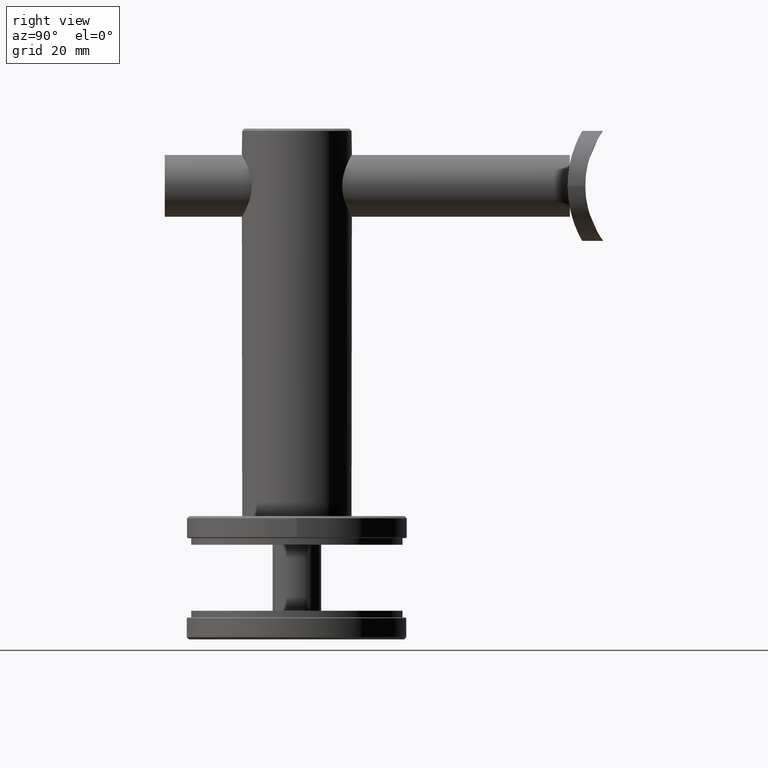
[diagram: clean part render]
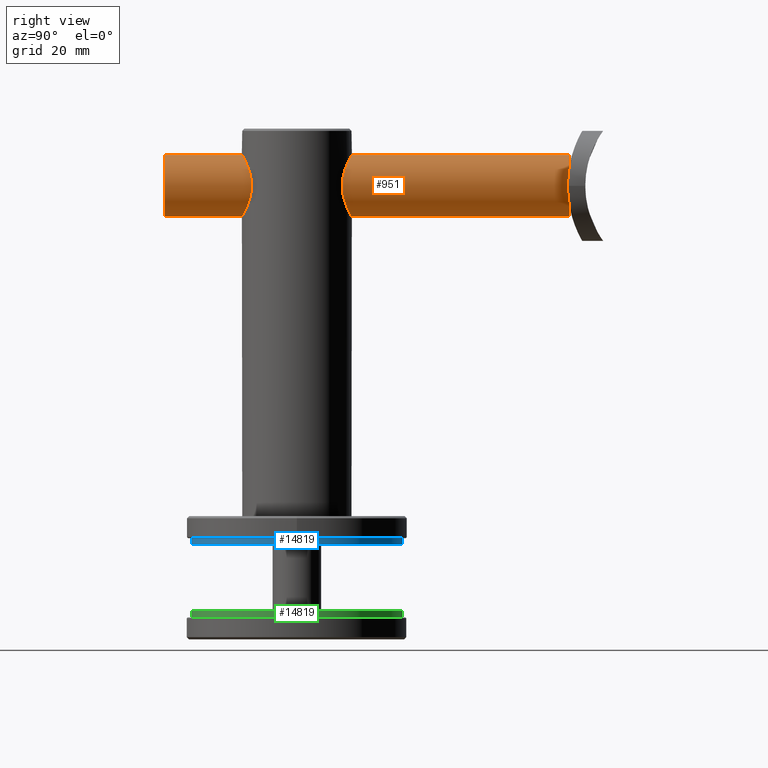
[diagram: same view with three faces highlighted in distinct colors, each labeled with its STEP entity id]
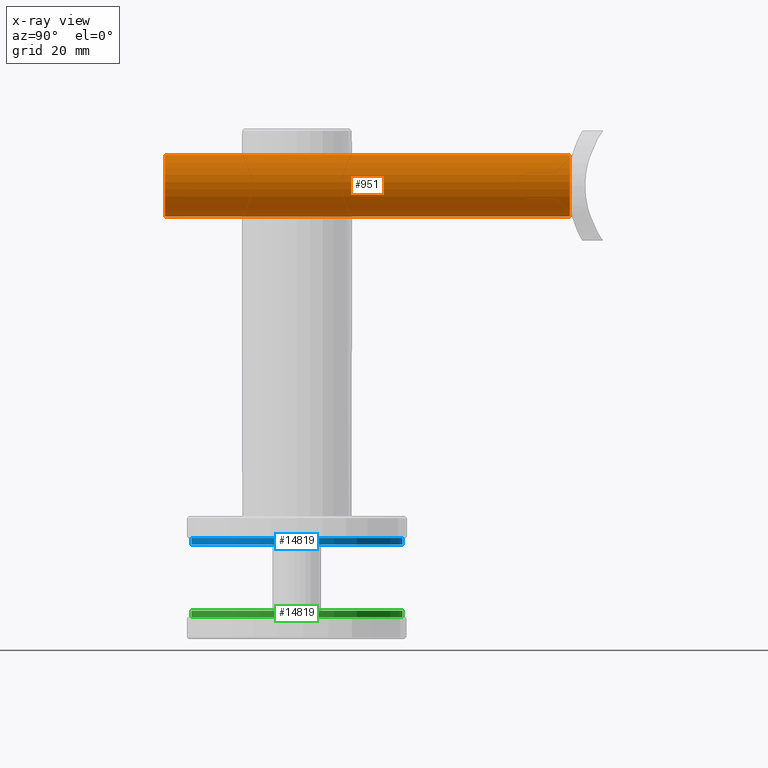
[diagram: x-ray of the same camera — body ghosted, the three highlighted faces saturated]
A machine part, right view with three faces highlighted in distinct colors.
The next image is the same camera in x-ray (body ghosted, the three faces saturated) — at least one of them is partly hidden behind the body in this view.
Their STEP definitions:

[orange] entity #951 — the highlighted cylindrical surface (bore or boss wall) has radius 7 mm, axis along (-0, -1, -0).
#743 = DIRECTION ( 'NONE',  ( 0.0000000000000000000, 0.0000000000000000000, 1.000000000000000000 ) ) ;
#951 = ADVANCED_FACE ( 'NONE', ( #4540, #6753 ), #20137, .T. ) ;
#1521 = CARTESIAN_POINT ( 'NONE',  ( 0.0000000000000000000, 92.00000000000000000, 0.0000000000000000000 ) ) ;
#2535 = ORIENTED_EDGE ( 'NONE', *, *, #19369, .T. ) ;
#2937 = EDGE_LOOP ( 'NONE', ( #2535 ) ) ;
#3798 = EDGE_CURVE ( 'NONE', #18965, #18965, #15809, .T. ) ;
#4540 = FACE_OUTER_BOUND ( 'NONE', #4876, .T. ) ;
#4582 = VERTEX_POINT ( 'NONE', #14495 ) ;
#4772 = DIRECTION ( 'NONE',  ( -0.0000000000000000000, -1.000000000000000000, -0.0000000000000000000 ) ) ;
#4876 = EDGE_LOOP ( 'NONE', ( #6499 ) ) ;
#5491 = DIRECTION ( 'NONE',  ( 0.0000000000000000000, 1.000000000000000000, 0.0000000000000000000 ) ) ;
#6337 = DIRECTION ( 'NONE',  ( 0.0000000000000000000, 0.0000000000000000000, 1.000000000000000000 ) ) ;
#6499 = ORIENTED_EDGE ( 'NONE', *, *, #3798, .F. ) ;
#6574 = CIRCLE ( 'NONE', #11270, 6.999999999999999100 ) ;
#6753 = FACE_OUTER_BOUND ( 'NONE', #2937, .T. ) ;
#6785 = CARTESIAN_POINT ( 'NONE',  ( 0.0000000000000000000, 92.00000000000000000, 6.999999999999999100 ) ) ;
#10766 = AXIS2_PLACEMENT_3D ( 'NONE', #15800, #4772, #14483 ) ;
#11270 = AXIS2_PLACEMENT_3D ( 'NONE', #16564, #5491, #743 ) ;
#14483 = DIRECTION ( 'NONE',  ( 0.0000000000000000000, 0.0000000000000000000, -1.000000000000000000 ) ) ;
#14495 = CARTESIAN_POINT ( 'NONE',  ( 0.0000000000000000000, 0.0000000000000000000, 6.999999999999999100 ) ) ;
#15800 = CARTESIAN_POINT ( 'NONE',  ( 0.0000000000000000000, 92.00000000000000000, 0.0000000000000000000 ) ) ;
#15809 = CIRCLE ( 'NONE', #19225, 6.999999999999999100 ) ;
#16564 = CARTESIAN_POINT ( 'NONE',  ( 0.0000000000000000000, 0.0000000000000000000, 0.0000000000000000000 ) ) ;
#18965 = VERTEX_POINT ( 'NONE', #6785 ) ;
#19066 = DIRECTION ( 'NONE',  ( 0.0000000000000000000, 1.000000000000000000, 0.0000000000000000000 ) ) ;
#19225 = AXIS2_PLACEMENT_3D ( 'NONE', #1521, #19066, #6337 ) ;
#19369 = EDGE_CURVE ( 'NONE', #4582, #4582, #6574, .T. ) ;
#20137 = CYLINDRICAL_SURFACE ( 'NONE', #10766, 6.999999999999999100 ) ;

[blue] entity #14819 — the highlighted cylindrical surface (bore or boss wall) has radius 24 mm, axis along (-0, -0, 1).
#99 = EDGE_LOOP ( 'NONE', ( #12339 ) ) ;
#3168 = EDGE_LOOP ( 'NONE', ( #11837 ) ) ;
#3204 = DIRECTION ( 'NONE',  ( 0.0000000000000000000, 0.0000000000000000000, 1.000000000000000000 ) ) ;
#3213 = EDGE_CURVE ( 'NONE', #12292, #12292, #3392, .T. ) ;
#3392 = CIRCLE ( 'NONE', #19907, 24.00000000000000400 ) ;
#5373 = AXIS2_PLACEMENT_3D ( 'NONE', #17869, #11508, #16422 ) ;
#6045 = CYLINDRICAL_SURFACE ( 'NONE', #5373, 24.00000000000000400 ) ;
#6715 = CARTESIAN_POINT ( 'NONE',  ( 0.0000000000000000000, 0.0000000000000000000, 24.00000000000000400 ) ) ;
#10414 = AXIS2_PLACEMENT_3D ( 'NONE', #16333, #18156, #13164 ) ;
#11124 = CARTESIAN_POINT ( 'NONE',  ( 0.0000000000000000000, 1.500000000000000000, 0.0000000000000000000 ) ) ;
#11508 = DIRECTION ( 'NONE',  ( -0.0000000000000000000, -1.000000000000000000, -0.0000000000000000000 ) ) ;
#11837 = ORIENTED_EDGE ( 'NONE', *, *, #15600, .T. ) ;
#12292 = VERTEX_POINT ( 'NONE', #16064 ) ;
#12339 = ORIENTED_EDGE ( 'NONE', *, *, #3213, .F. ) ;
#12723 = DIRECTION ( 'NONE',  ( 0.0000000000000000000, 1.000000000000000000, 0.0000000000000000000 ) ) ;
#13164 = DIRECTION ( 'NONE',  ( 0.0000000000000000000, 0.0000000000000000000, 1.000000000000000000 ) ) ;
#13201 = FACE_OUTER_BOUND ( 'NONE', #3168, .T. ) ;
#14819 = ADVANCED_FACE ( 'NONE', ( #17420, #13201 ), #6045, .T. ) ;
#14946 = CIRCLE ( 'NONE', #10414, 24.00000000000000400 ) ;
#15600 = EDGE_CURVE ( 'NONE', #17947, #17947, #14946, .T. ) ;
#16064 = CARTESIAN_POINT ( 'NONE',  ( 0.0000000000000000000, 1.500000000000000000, 24.00000000000000400 ) ) ;
#16333 = CARTESIAN_POINT ( 'NONE',  ( 0.0000000000000000000, 0.0000000000000000000, 0.0000000000000000000 ) ) ;
#16422 = DIRECTION ( 'NONE',  ( 0.0000000000000000000, 0.0000000000000000000, -1.000000000000000000 ) ) ;
#17420 = FACE_OUTER_BOUND ( 'NONE', #99, .T. ) ;
#17869 = CARTESIAN_POINT ( 'NONE',  ( 0.0000000000000000000, 1.500000000000000000, 0.0000000000000000000 ) ) ;
#17947 = VERTEX_POINT ( 'NONE', #6715 ) ;
#18156 = DIRECTION ( 'NONE',  ( 0.0000000000000000000, 1.000000000000000000, 0.0000000000000000000 ) ) ;
#19907 = AXIS2_PLACEMENT_3D ( 'NONE', #11124, #12723, #3204 ) ;

[green] entity #14819 — the highlighted cylindrical surface (bore or boss wall) has radius 24 mm, axis along (-0, -0, 1).
#99 = EDGE_LOOP ( 'NONE', ( #12339 ) ) ;
#3168 = EDGE_LOOP ( 'NONE', ( #11837 ) ) ;
#3204 = DIRECTION ( 'NONE',  ( 0.0000000000000000000, 0.0000000000000000000, 1.000000000000000000 ) ) ;
#3213 = EDGE_CURVE ( 'NONE', #12292, #12292, #3392, .T. ) ;
#3392 = CIRCLE ( 'NONE', #19907, 24.00000000000000400 ) ;
#5373 = AXIS2_PLACEMENT_3D ( 'NONE', #17869, #11508, #16422 ) ;
#6045 = CYLINDRICAL_SURFACE ( 'NONE', #5373, 24.00000000000000400 ) ;
#6715 = CARTESIAN_POINT ( 'NONE',  ( 0.0000000000000000000, 0.0000000000000000000, 24.00000000000000400 ) ) ;
#10414 = AXIS2_PLACEMENT_3D ( 'NONE', #16333, #18156, #13164 ) ;
#11124 = CARTESIAN_POINT ( 'NONE',  ( 0.0000000000000000000, 1.500000000000000000, 0.0000000000000000000 ) ) ;
#11508 = DIRECTION ( 'NONE',  ( -0.0000000000000000000, -1.000000000000000000, -0.0000000000000000000 ) ) ;
#11837 = ORIENTED_EDGE ( 'NONE', *, *, #15600, .T. ) ;
#12292 = VERTEX_POINT ( 'NONE', #16064 ) ;
#12339 = ORIENTED_EDGE ( 'NONE', *, *, #3213, .F. ) ;
#12723 = DIRECTION ( 'NONE',  ( 0.0000000000000000000, 1.000000000000000000, 0.0000000000000000000 ) ) ;
#13164 = DIRECTION ( 'NONE',  ( 0.0000000000000000000, 0.0000000000000000000, 1.000000000000000000 ) ) ;
#13201 = FACE_OUTER_BOUND ( 'NONE', #3168, .T. ) ;
#14819 = ADVANCED_FACE ( 'NONE', ( #17420, #13201 ), #6045, .T. ) ;
#14946 = CIRCLE ( 'NONE', #10414, 24.00000000000000400 ) ;
#15600 = EDGE_CURVE ( 'NONE', #17947, #17947, #14946, .T. ) ;
#16064 = CARTESIAN_POINT ( 'NONE',  ( 0.0000000000000000000, 1.500000000000000000, 24.00000000000000400 ) ) ;
#16333 = CARTESIAN_POINT ( 'NONE',  ( 0.0000000000000000000, 0.0000000000000000000, 0.0000000000000000000 ) ) ;
#16422 = DIRECTION ( 'NONE',  ( 0.0000000000000000000, 0.0000000000000000000, -1.000000000000000000 ) ) ;
#17420 = FACE_OUTER_BOUND ( 'NONE', #99, .T. ) ;
#17869 = CARTESIAN_POINT ( 'NONE',  ( 0.0000000000000000000, 1.500000000000000000, 0.0000000000000000000 ) ) ;
#17947 = VERTEX_POINT ( 'NONE', #6715 ) ;
#18156 = DIRECTION ( 'NONE',  ( 0.0000000000000000000, 1.000000000000000000, 0.0000000000000000000 ) ) ;
#19907 = AXIS2_PLACEMENT_3D ( 'NONE', #11124, #12723, #3204 ) ;